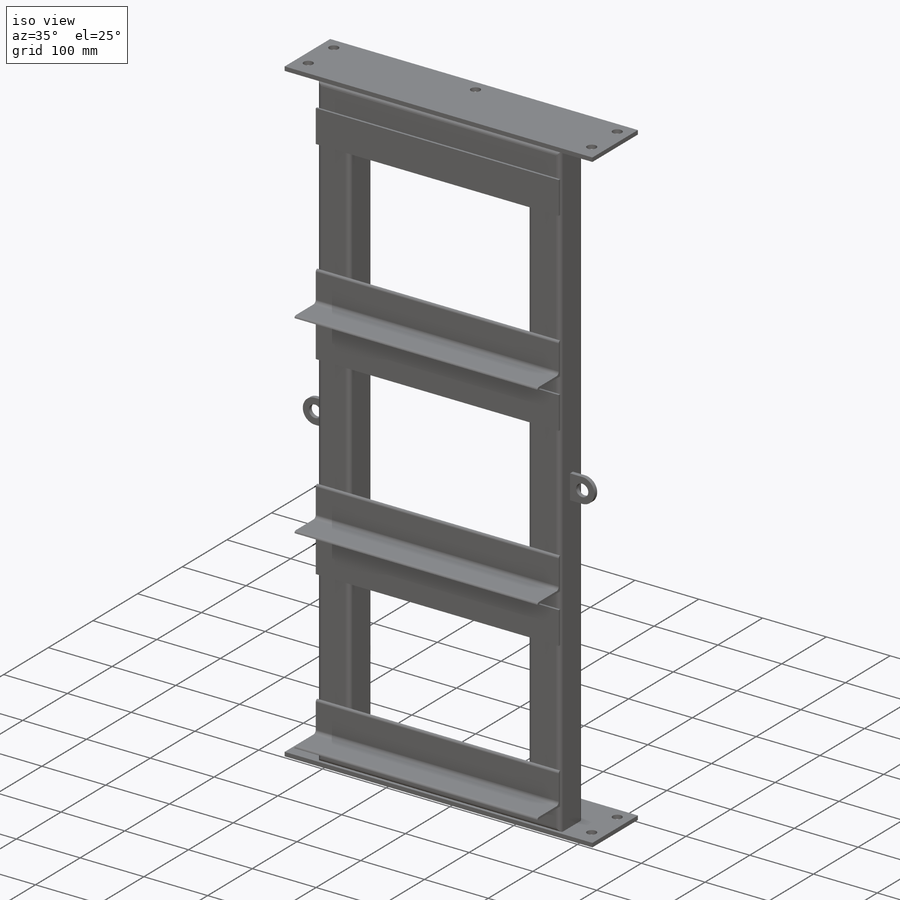
[diagram: iso view]
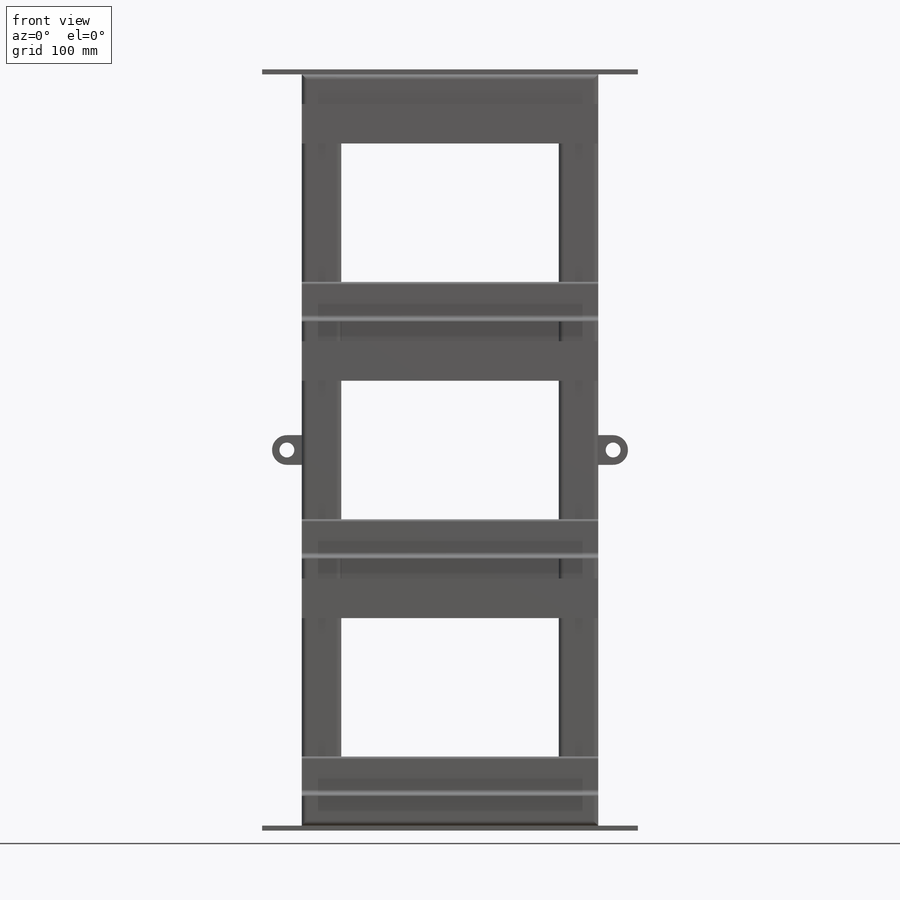
[diagram: front view]
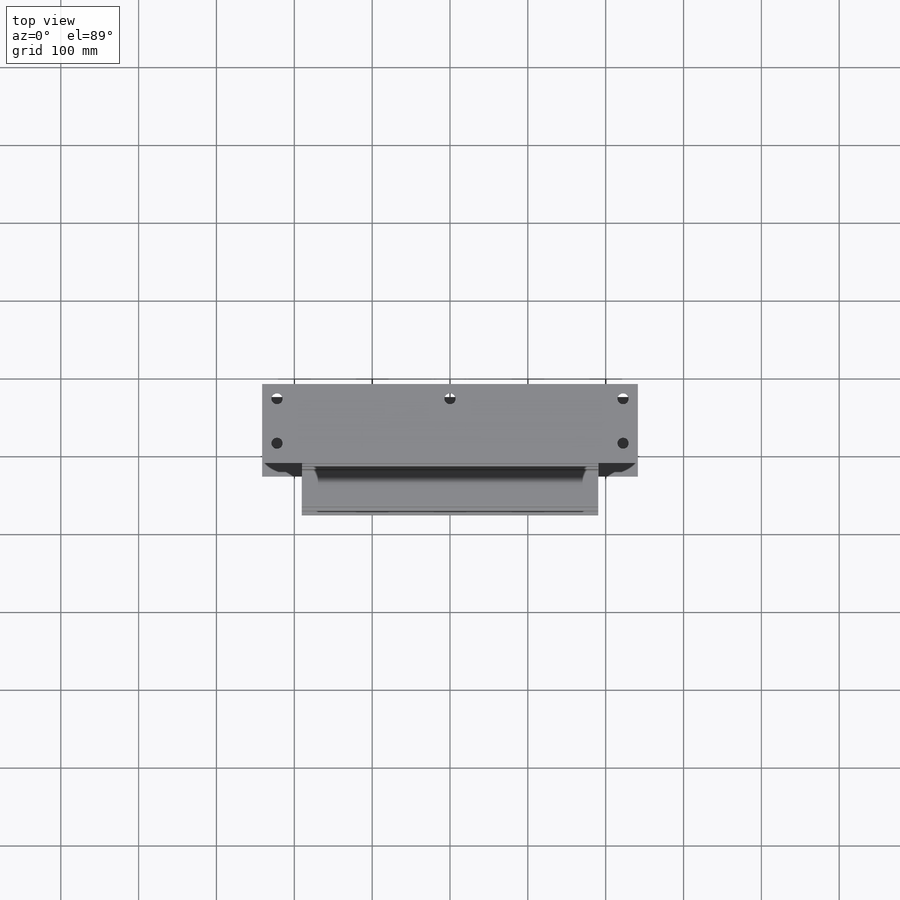
[diagram: top view]
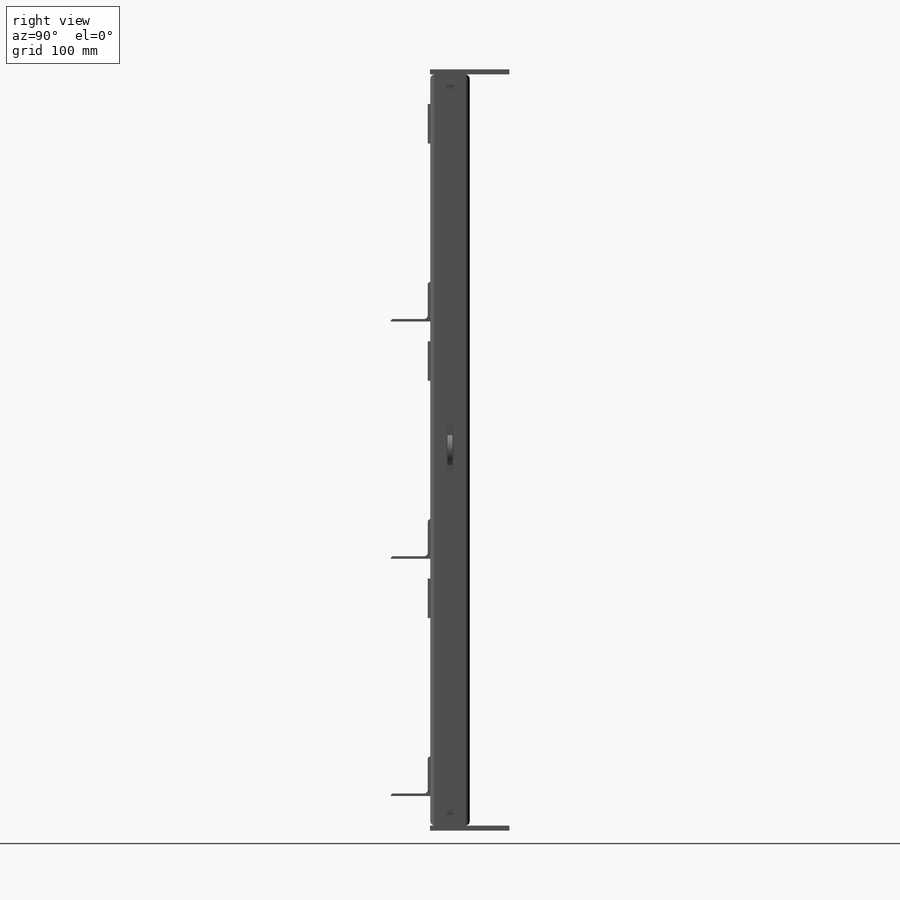
[diagram: right view]
SOLIDWORKS PART (.sldprt)
format: sldprt  version: not decoded by parser v0  size: 472,576 bytes
history: native  units: mm
features: sketch x9, plane x3, extrude x3, mirror x2, material x1, hole x1, pattern_linear x1 + 6 further entries (+18 scaffold rows collapsed)
feature tree (44):
  scaffold x18  (default folders/planes/origin — collapsed)
  material  "Plain Carbon Steel"
  "Cut-List-Item2"
  "Cut-List-Item3"
  "Cut-List-Item4"
  "Cut-List-Item5"
  "Cut-List-Item7"
  "Cut-List-Item8"
  sketch  "Sketch1"  dims[D1=914.4mm D2=330.2mm D3=~294.68882mm]
  plane  "Plane1"
  sketch  "Sketch11"  dims[c1.D1=6.35mm c1.D2=6.35mm c1.D3=6.35mm c1.D4=6.35mm c1.D5=6.35mm c1.D6=6.35mm c1.D7=6.35mm c1.D8=6.35mm c2.D1=6.604mm c2.D2=6.604mm c2.D3=6.604mm c2.D4=6.604mm c3.D1=6.096mm c3.Thickness=3.048mm c3.D4=12.9032mm c3.D5=12.9286mm c3.V_leg=50.8mm c3.H_leg=50.8mm c4.D4=50.3428mm c4.D5=50.8508mm c5.D4=~41.274964mm c5.D5=~41.274964mm]
  sketch  "Sketch12"  dims[c1.D3=~9.768985mm c1.D1=50.8mm c1.D2=50.8mm c2.D3=19.05mm c2.D4=19.05mm]
  extrude  "Boss-Extrude1"  Depth=6.35mm
  hole  "9/16 (0.5625) Diameter Hole1"  Diameter=14.2875mm Depth=81.026mm
  sketch  "Sketch14"
  sketch  "Sketch13"  dims[hole-wizard template sketch: 46 standard entries collapsed; hole parameters kept: c15.Hole Dia.=14.2875mm c15.Hole Depth=81.026mm c15.D3=~14.816244mm c15.Drill Angle=118.0deg]
  mirror  "Mirror1"
  plane  "BracketPlane"
  sketch  "Sketch15"  dims[c1.D1=279.4mm c1.D2=~96.499387mm c2.D2=180.0deg]
  plane  "Plane4"
  sketch  "Sketch141"  dims[c1.D2=3.175mm c1.Radius_1=4.7625mm c1.Radius_2=3.175mm c1.V_leg=50.8mm c1.H_leg=50.8mm c1.Thickness=3.175mm c1.D1=3.175mm c1.D3=46.0375mm c2.V_leg=25.4mm c2.H_leg=50.8mm c2.Flat_wid=~0.00508mm c2.D3=6.35mm c2.D2=~0.00508mm]
  sketch  "Sketch142"  dims[D1=3.175mm D2=50.8mm]
  extrude  "Boss-Extrude2"  [1 undecoded]
  pattern_linear  "LPattern1"  Count1=3 Count2=1 Spacing1=304.8mm Spacing2=50mm
  sketch  "Sketch144"  dims[D2=19.05mm D3=19.05mm D1=38.1mm]
  extrude  "Boss-Extrude3"  Depth=6.35mm
  mirror  "Mirror3"
decode coverage: 12 of 16 modeling features carry decoded parameters; 6 rows unclassified (native names shown)
note: ~ marks probable driven/reference dimensions
note: 1 parameter value undecoded
note: suppression state not decoded; provenance and decode notes live in map.json
